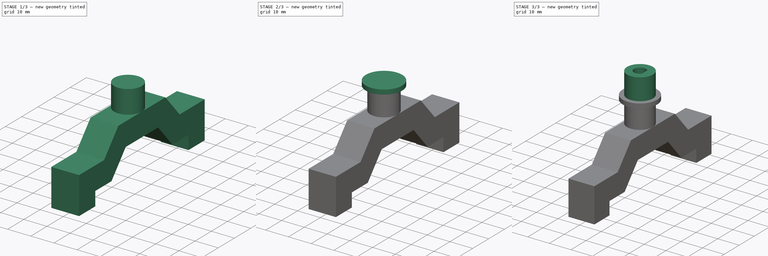
[diagram: build sequence overview — one tinted view per stage of 3, left to right]
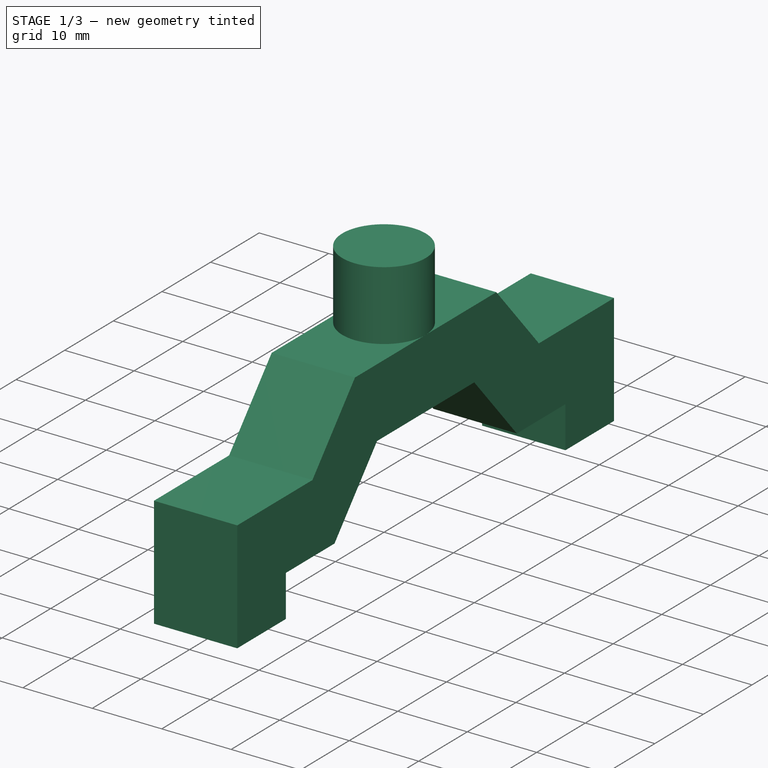
[diagram: stage 1 of 3 — iso view after this stage's code; geometry added in this stage tinted green]
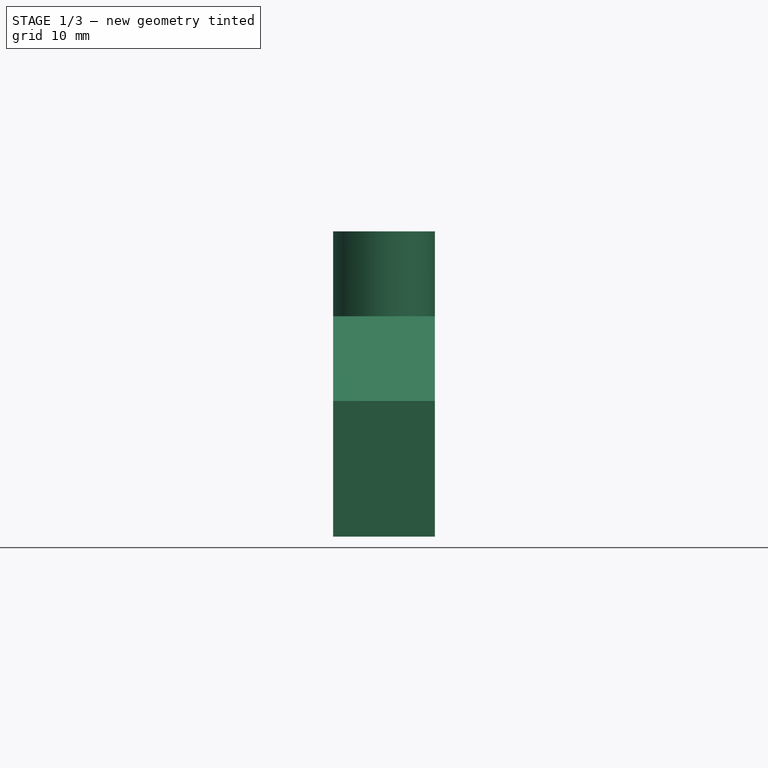
[diagram: stage 1 of 3 — front view after this stage's code; geometry added in this stage tinted green]
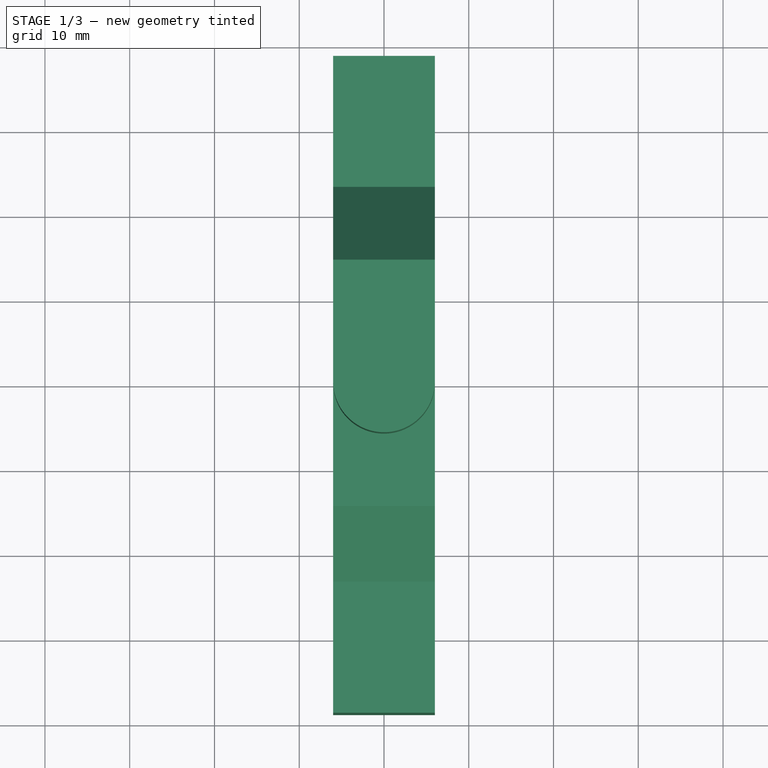
[diagram: stage 1 of 3 — top view after this stage's code; geometry added in this stage tinted green]
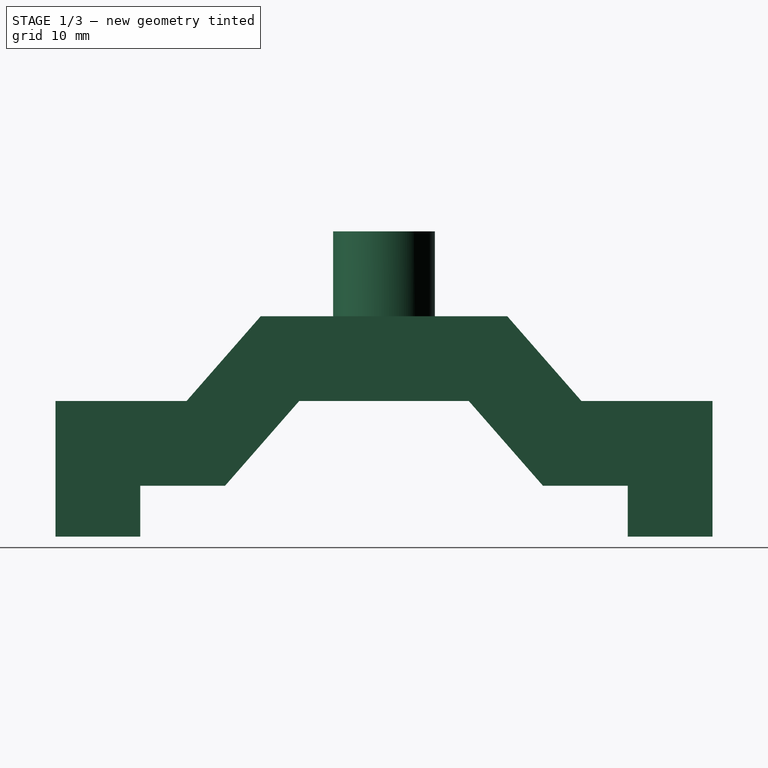
[diagram: stage 1 of 3 — right view after this stage's code; geometry added in this stage tinted green]
FCSTD DOCUMENT  (FreeCAD 0.15R4671 (Git))
Label: Fixed Claw
License: All rights reserved
LicenseURL: http://en.wikipedia.org/wiki/All_rights_reserved
objects: Sketcher::SketchObject×5, PartDesign::Pad×4, PartDesign::Pocket×1
note: 15 computed .brp shape members not serialized (recipe doc carries the construction recipe); baked Part::Feature solids carry a one-line shape summary decoded from their .brp

FEATURE [Sketcher::SketchObject] Sketch
  Placement = pos=(-6,0,0) rot=(0.57735,0.57735,0.57735;2.0944rad)
  sketch-geometry (17):
    g0: LineSegment StartX=-38.75 StartY=0 StartZ=0 EndX=-38.75 EndY=16 EndZ=0
    g1: LineSegment StartX=38.75 StartY=16 StartZ=0 EndX=38.75 EndY=0 EndZ=0
    g2: LineSegment StartX=-28.75 StartY=0 StartZ=0 EndX=-28.75 EndY=6 EndZ=0
    g3: LineSegment StartX=28.75 StartY=6 StartZ=0 EndX=28.75 EndY=0 EndZ=0
    g4: LineSegment StartX=-28.75 StartY=6 StartZ=0 EndX=-18.75 EndY=6 EndZ=0
    g5: LineSegment StartX=-18.75 StartY=6 StartZ=0 EndX=-10 EndY=16 EndZ=0
    g6: LineSegment StartX=-10 StartY=16 StartZ=0 EndX=10 EndY=16 EndZ=0
    g7: LineSegment StartX=10 StartY=16 StartZ=0 EndX=18.75 EndY=6 EndZ=0
    g8: LineSegment StartX=18.75 StartY=6 StartZ=0 EndX=28.75 EndY=6 EndZ=0
    g9: LineSegment StartX=-38.75 StartY=0 StartZ=0 EndX=-28.75 EndY=0 EndZ=0
    g10: LineSegment StartX=38.75 StartY=0 StartZ=0 EndX=28.75 EndY=0 EndZ=0
    g11: LineSegment StartX=-38.75 StartY=16 StartZ=0 EndX=-23.2877 EndY=16 EndZ=0
    g12: LineSegment StartX=-23.2877 StartY=16 StartZ=0 EndX=-14.5377 EndY=26 EndZ=0
    g13: LineSegment StartX=-14.5377 StartY=26 StartZ=0 EndX=14.5377 EndY=26 EndZ=0
    g14: LineSegment StartX=14.5377 StartY=26 StartZ=0 EndX=23.2877 EndY=16 EndZ=0
    g15: LineSegment StartX=23.2877 StartY=16 StartZ=0 EndX=38.75 EndY=16 EndZ=0
    g16: LineSegment [constr] StartX=-10 StartY=16 StartZ=0 EndX=-17.5258 EndY=22.585 EndZ=0
  constraints (51):
    c: Vertical(g1)
    c: Vertical(g0)
    c: Vertical(g2)
    c: Vertical(g3)
    c: Symmetric(g2,g3,g-2)
    c: Equal(g1,g0)
    c: Symmetric(g0,g1,g-2)
    c: Coincident(g2,g4)
    c: Horizontal(g4)
    c: Coincident(g4,g5)
    c: Coincident(g5,g6)
    c: Horizontal(g6)
    c: Coincident(g6,g7)
    c: Coincident(g7,g8)
    c: Coincident(g8,g3)
    c: Horizontal(g8)
    c: Symmetric(g5,g6,g-2)
    c: Symmetric(g4,g7,g-2)
    c: Equal(g4,g8)
    c: Distance(g4) = 10
    c: DistanceX(g2,g3) = 57.5
    c: PointOnObject(g0,g-1)
    c: DistanceY(g0,g2) = 6
    c: Coincident(g0,g9)
    c: PointOnObject(g9,g-1)
    c: Coincident(g1,g10)
    c: PointOnObject(g10,g-1)
    c: Equal(g9,g10)
    c: DistanceX(g2,g0) = -10
    c: Equal(g2,g3)
    c: DistanceY(g2,g0) = 10
    c: Coincident(g0,g11)
    c: Horizontal(g11)
    c: Coincident(g11,g12)
    c: Coincident(g12,g13)
    c: Horizontal(g13)
    c: Coincident(g13,g14)
    c: Coincident(g14,g15)
    c: Coincident(g15,g1)
    c: Horizontal(g15)
    c: DistanceY(g4,g5) = 10
    c: DistanceX(g5,g6) = 20
    c: Symmetric(g12,g13,g-2)
    c: Parallel(g5,g12)
    c: Parallel(g7,g14)
    c: DistanceY(g6,g13) = 10
    c: Coincident(g16,g5)
    c: PointOnObject(g16,g12)
    c: Perpendicular(g12,g16)
    c: Distance(g16) = 10
    c: Coincident(g3,g10)
FEATURE [PartDesign::Pad] Pad
  Length = 12
  Length2 = 100
  Placement = pos=(-6,0,0) rot=(0.57735,0.57735,0.57735;2.0944rad)
  Sketch = -> Sketch
  Type = 0
FEATURE [Sketcher::SketchObject] Sketch002
  ExternalGeometry = -> [Pad]
  Placement = pos=(-6,0,26) rot=(0,0,-1;1.5708rad)
  Support = -> Pad [Face5]
  sketch-geometry (1):
    g0: Circle CenterX=0 CenterY=6 CenterZ=0 NormalX=0 NormalY=0 NormalZ=1 Radius=6
  constraints (3):
    c: PointOnObject(g0,g-2)
    c: Tangent(g0,g-3)
    c: Tangent(g-4,g0)
FEATURE [PartDesign::Pad] Pad001
  Length = 10
  Length2 = 100
  Placement = pos=(-6,0,0) rot=(0.57735,0.57735,0.57735;2.0944rad)
  Sketch = -> Sketch002
  Type = 0
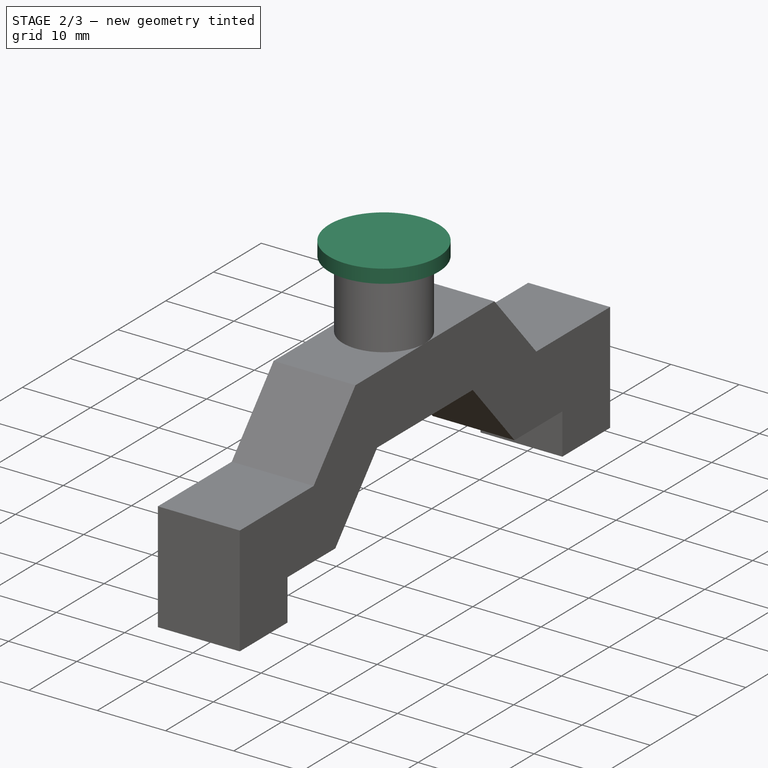
[diagram: stage 2 of 3 — iso view after this stage's code; geometry added in this stage tinted green]
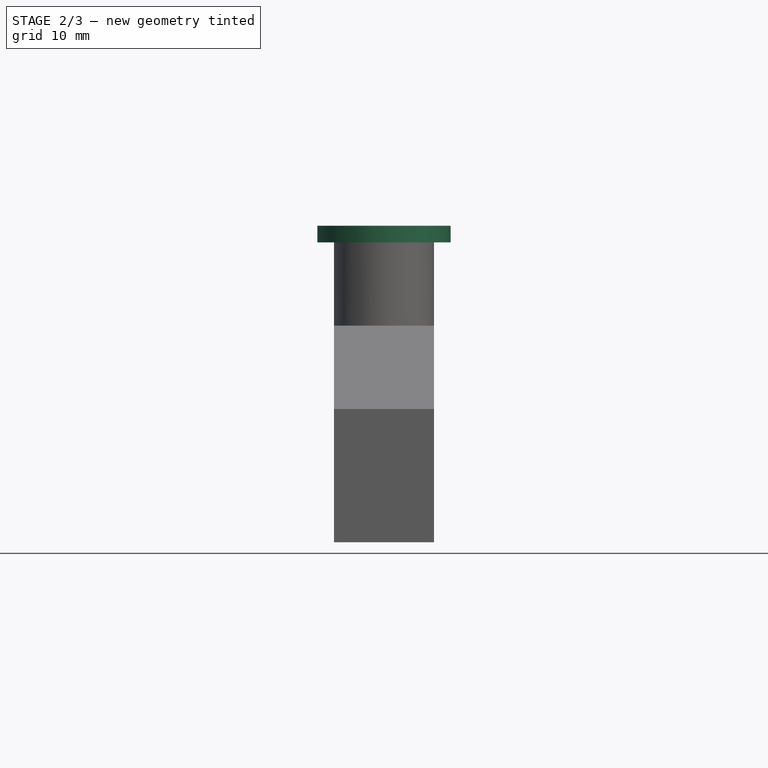
[diagram: stage 2 of 3 — front view after this stage's code; geometry added in this stage tinted green]
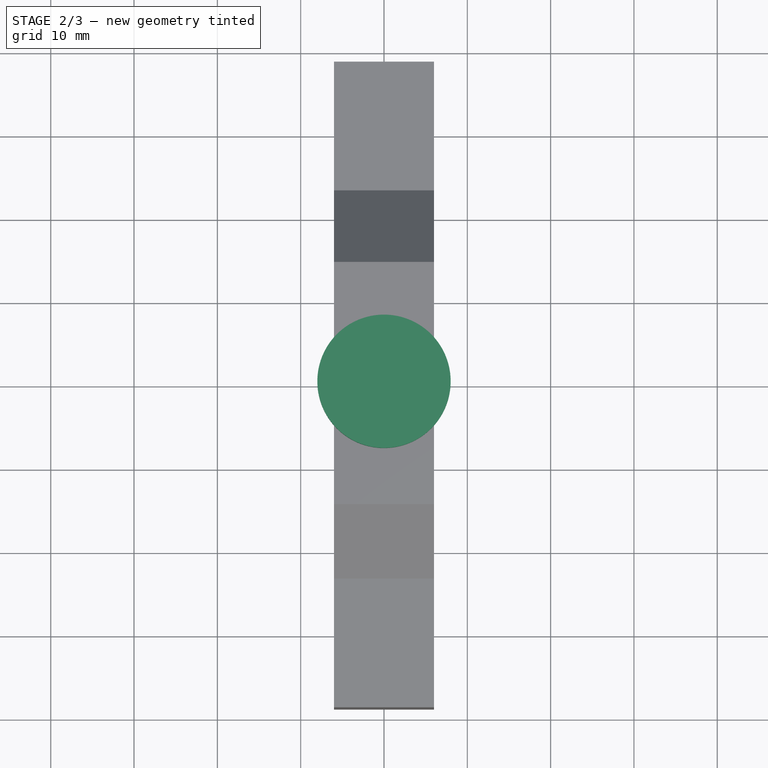
[diagram: stage 2 of 3 — top view after this stage's code; geometry added in this stage tinted green]
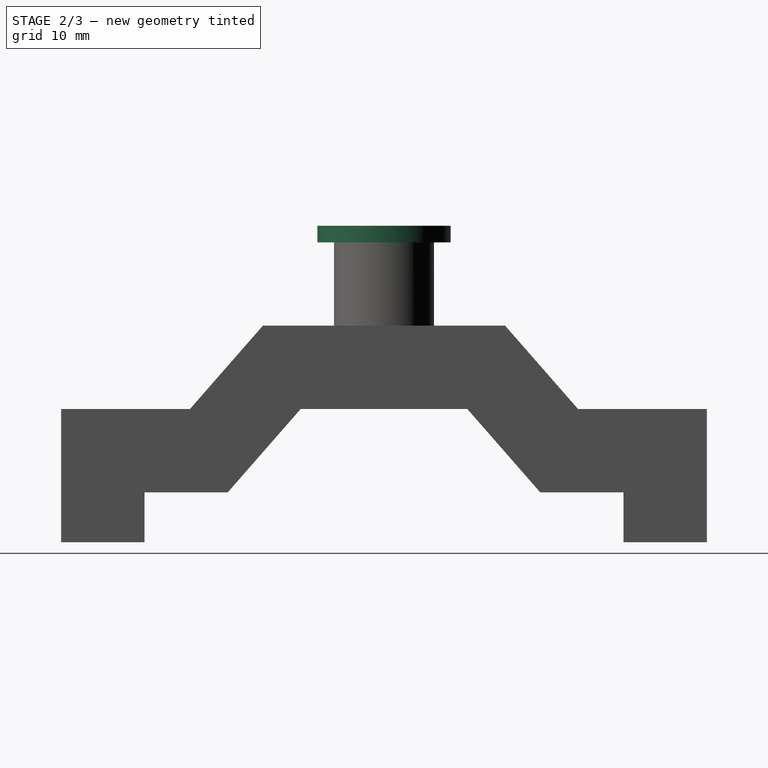
[diagram: stage 2 of 3 — right view after this stage's code; geometry added in this stage tinted green]
FEATURE [Sketcher::SketchObject] Sketch003
  ExternalGeometry = -> [Pad001]
  Placement = pos=(-6,0,36) rot=(0,0,-1;1.5708rad)
  Support = -> Pad001 [Face21]
  sketch-geometry (1):
    g0: Circle CenterX=0 CenterY=6 CenterZ=0 NormalX=0 NormalY=0 NormalZ=1 Radius=8
  constraints (1):
    c: Radius(g0) = 8
FEATURE [PartDesign::Pad] Pad002
  Length = 2
  Length2 = 100
  Placement = pos=(-6,0,0) rot=(0.57735,0.57735,0.57735;2.0944rad)
  Sketch = -> Sketch003
  Type = 0
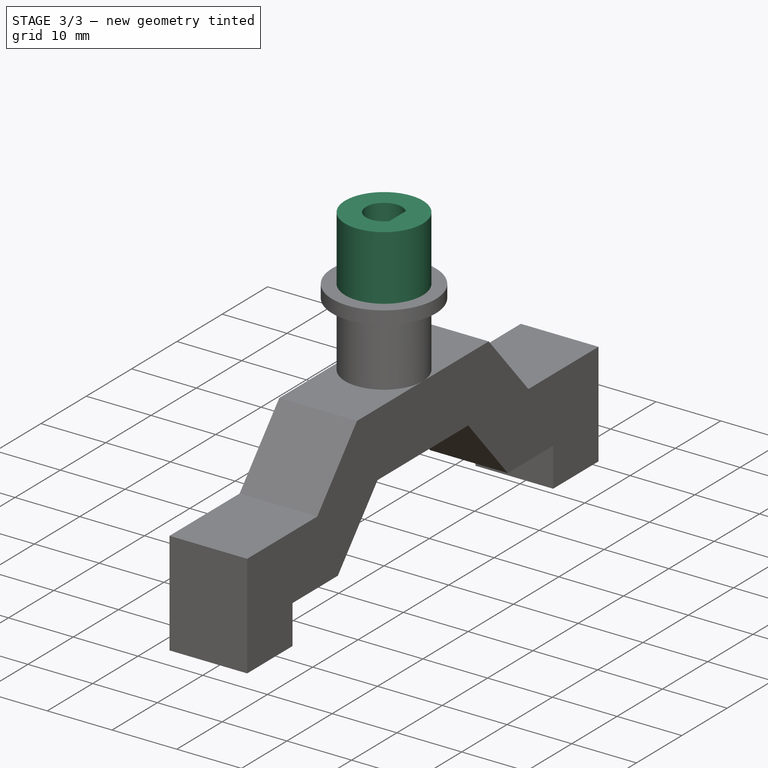
[diagram: stage 3 of 3 — iso view after this stage's code; geometry added in this stage tinted green]
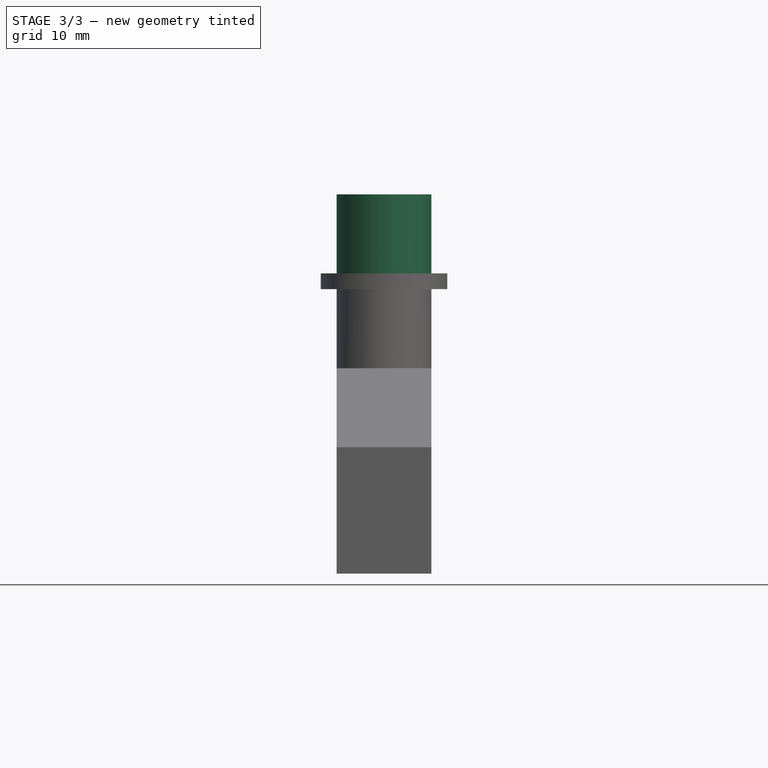
[diagram: stage 3 of 3 — front view after this stage's code; geometry added in this stage tinted green]
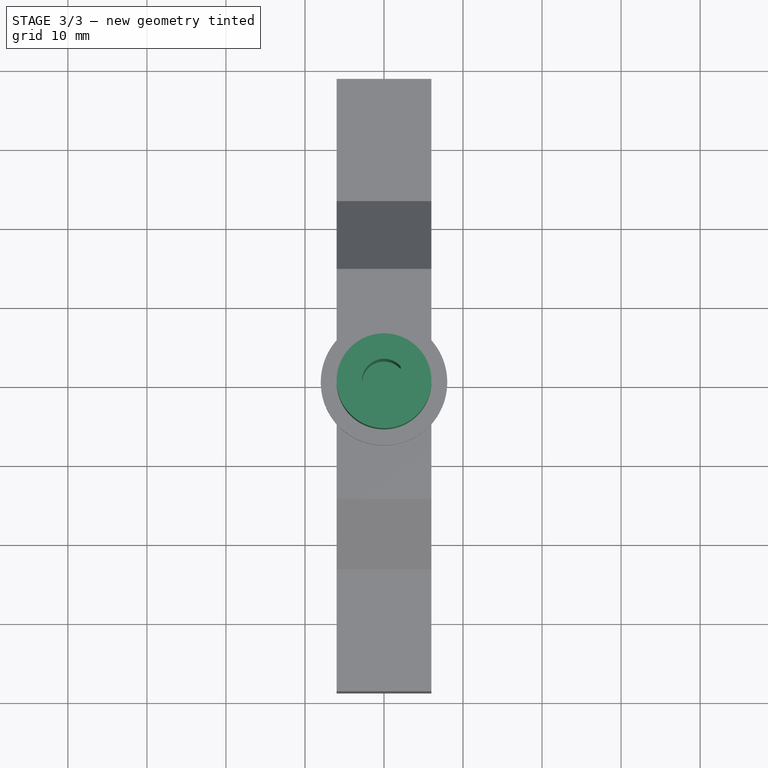
[diagram: stage 3 of 3 — top view after this stage's code; geometry added in this stage tinted green]
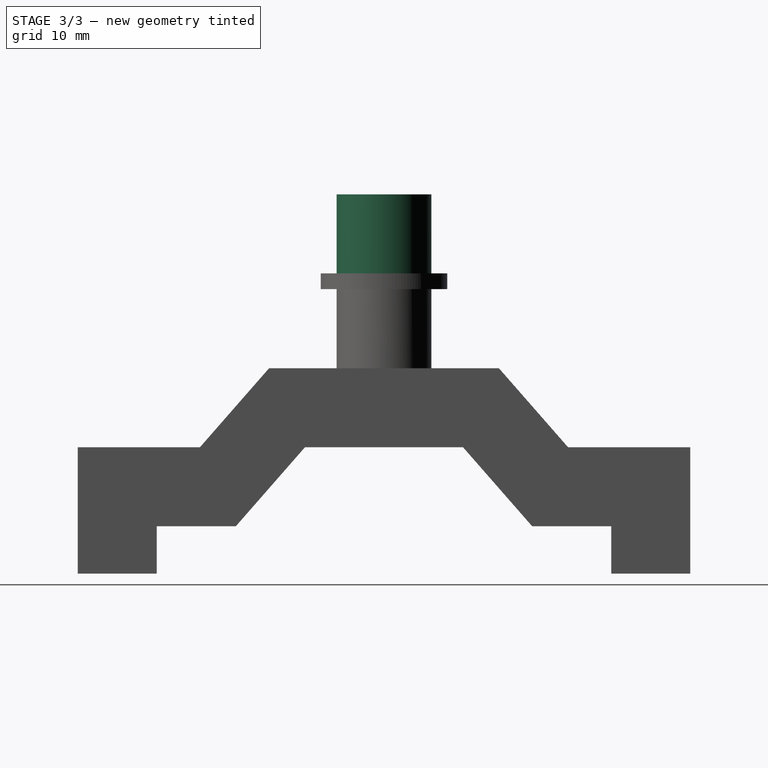
[diagram: stage 3 of 3 — right view after this stage's code; geometry added in this stage tinted green]
FEATURE [Sketcher::SketchObject] Sketch004
  Placement = pos=(-6,0,38) rot=(0,0,-1;1.5708rad)
  Support = -> Pad002 [Face23]
  sketch-geometry (1):
    g0: Circle CenterX=0 CenterY=6 CenterZ=0 NormalX=0 NormalY=0 NormalZ=1 Radius=6
FEATURE [PartDesign::Pad] Pad003
  Length = 10
  Length2 = 100
  Placement = pos=(-6,0,0) rot=(0.57735,0.57735,0.57735;2.0944rad)
  Sketch = -> Sketch004
  Type = 0
FEATURE [Sketcher::SketchObject] Sketch005
  ExternalGeometry = -> [Pad003]
  Placement = pos=(-6,0,48) rot=(0,0,-1;1.5708rad)
  Support = -> Pad003 [Face25]
  sketch-geometry (4):
    g0: Circle [constr] CenterX=0 CenterY=6 CenterZ=0 NormalX=0 NormalY=0 NormalZ=1 Radius=2.78
    g1: LineSegment StartX=-1.82165 StartY=8.1 StartZ=0 EndX=1.82165 EndY=8.1 EndZ=0
    g2: ArcOfCircle CenterX=0 CenterY=6 CenterZ=0 NormalX=0 NormalY=0 NormalZ=1 Radius=2.78 StartAngle=2.28533 EndAngle=7.13944
    g3: GeomPoint [constr] X=0 Y=3.22 Z=0
  constraints (11):
    c: Coincident(g0,g-3)
    c: PointOnObject(g1,g0)
    c: PointOnObject(g1,g0)
    c: Horizontal(g1)
    c: Coincident(g2,g0)
    c: Coincident(g2,g1)
    c: Coincident(g2,g1)
    c: PointOnObject(g3,g0)
    c: PointOnObject(g3,g-2)
    c: DistanceY(g3,g1) = 4.88
    c: Radius(g0) = 2.78
FEATURE [PartDesign::Pocket] Pocket
  Length = 21
  Placement = pos=(-6,0,0) rot=(0.57735,0.57735,0.57735;2.0944rad)
  Sketch = -> Sketch005
  Type = 0
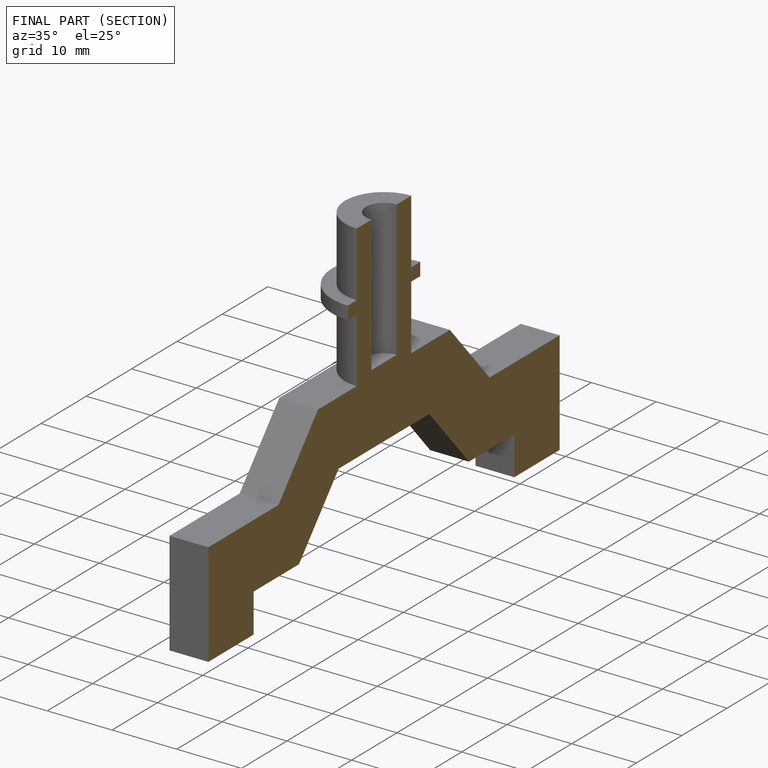
[diagram: finished part — half-section view (interior)]
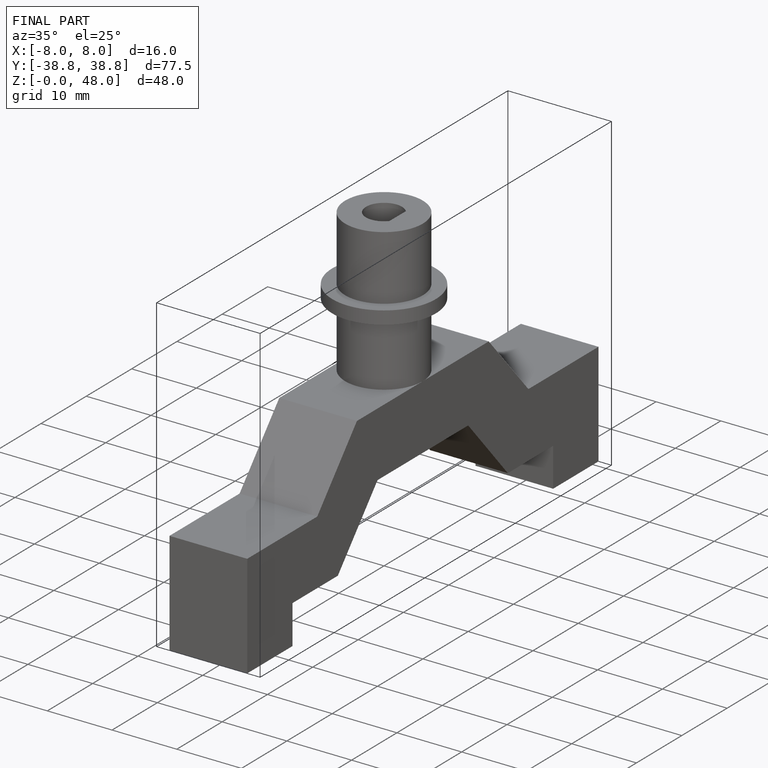
[diagram: finished part — iso view with bounding-box wireframe]
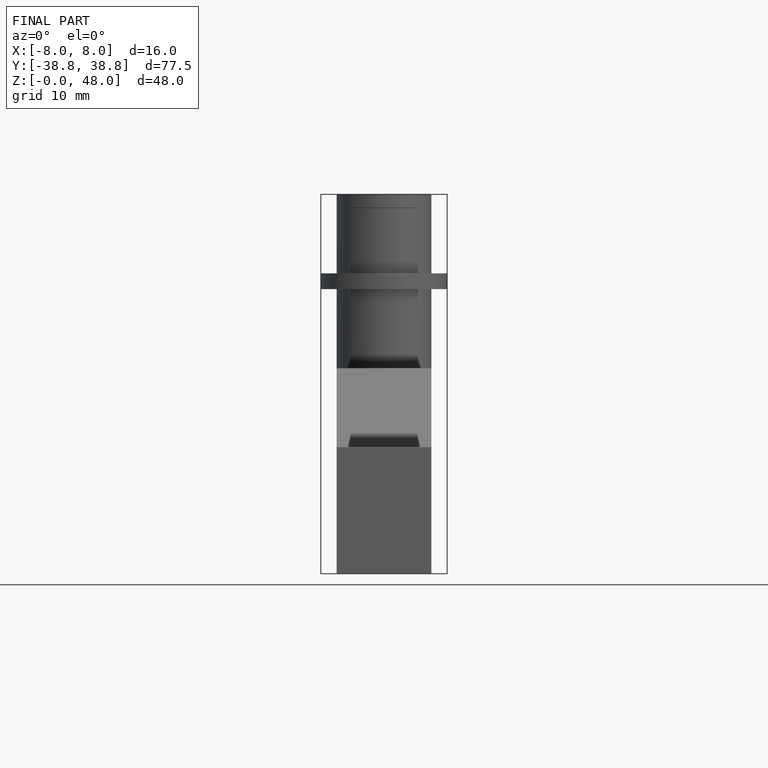
[diagram: finished part — front view with bounding-box wireframe]
